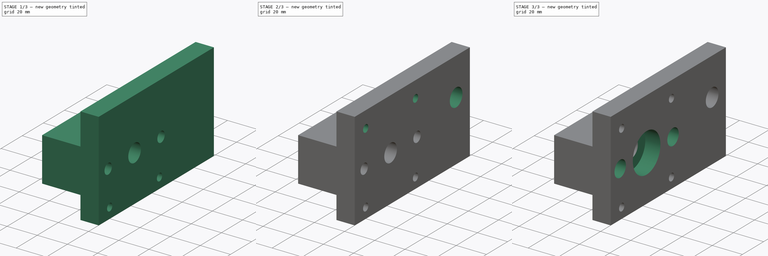
[diagram: build sequence overview — one tinted view per stage of 3, left to right]
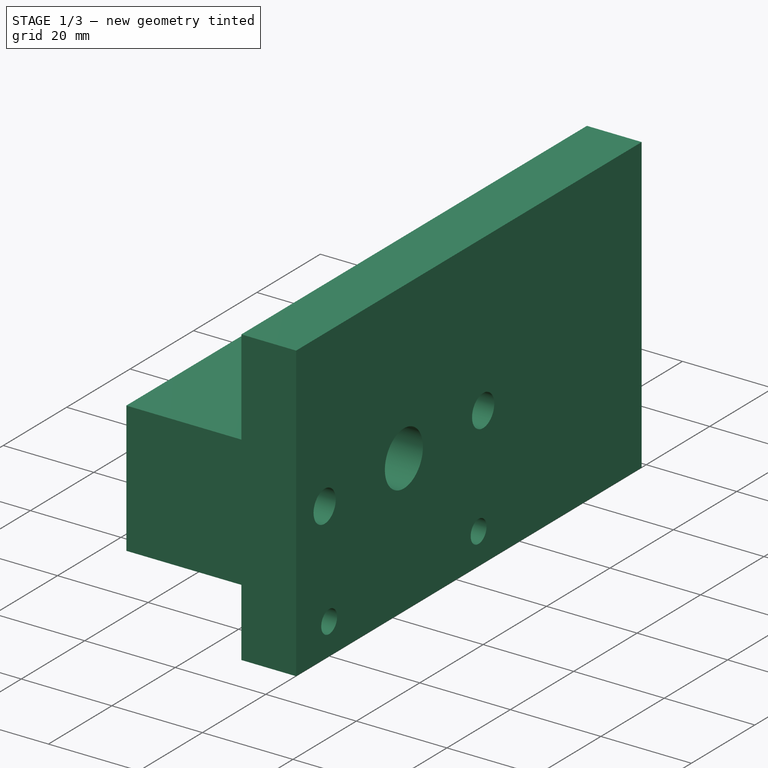
[diagram: stage 1 of 3 — iso view after this stage's code; geometry added in this stage tinted green]
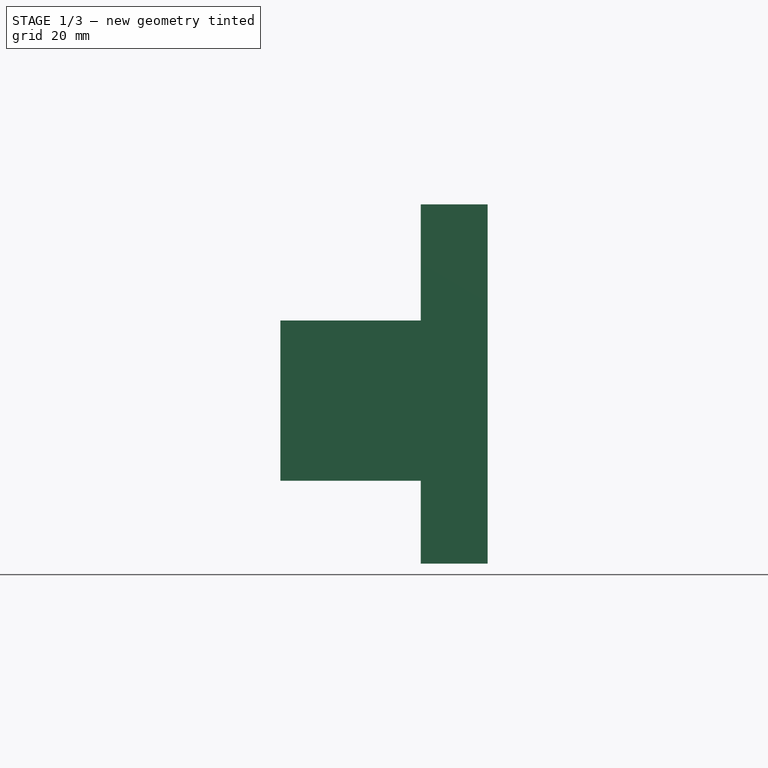
[diagram: stage 1 of 3 — front view after this stage's code; geometry added in this stage tinted green]
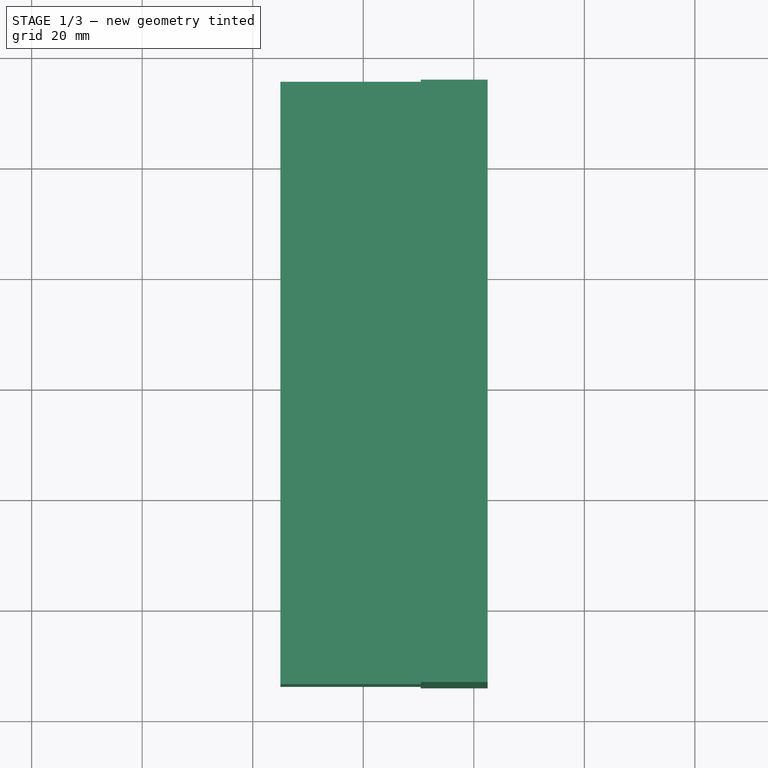
[diagram: stage 1 of 3 — top view after this stage's code; geometry added in this stage tinted green]
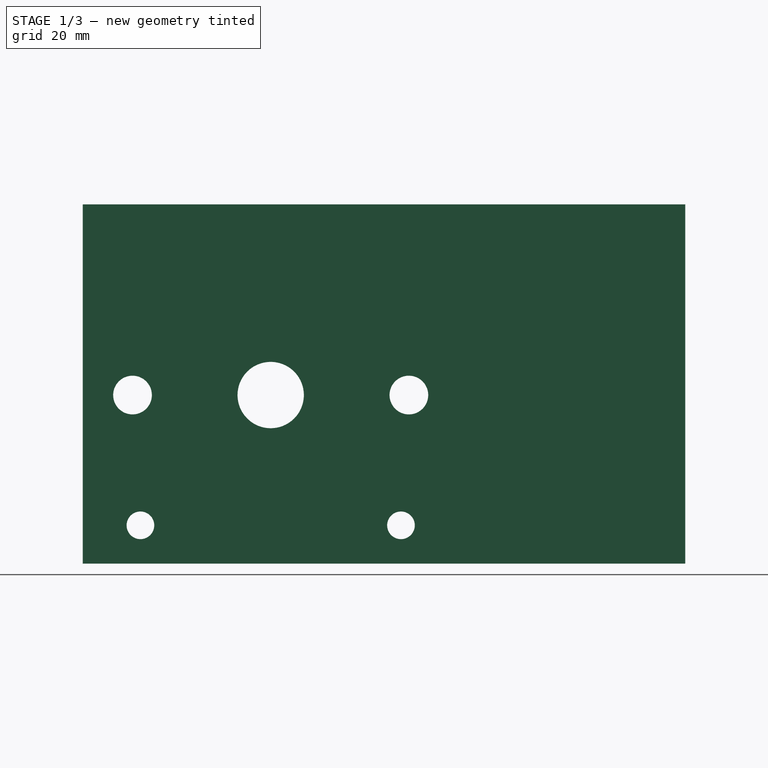
[diagram: stage 1 of 3 — right view after this stage's code; geometry added in this stage tinted green]
FCSTD DOCUMENT  (FreeCAD 0.16R6703 (Git))
Label: Y-Axis-screw-seat-142-new
License: All rights reserved
LicenseURL: http://en.wikipedia.org/wiki/All_rights_reserved
objects: Sketcher::SketchObject×7, PartDesign::Pocket×6, PartDesign::Pad×1
note: 21 computed .brp shape members not serialized (recipe doc carries the construction recipe); baked Part::Feature solids carry a one-line shape summary decoded from their .brp

FEATURE [Sketcher::SketchObject] Sketch006  label="Base"
  Placement = pos=(25,0,0) rot=(0.57735,0.57735,0.57735;2.0944rad)
  sketch-geometry (9):
    g0: Circle CenterX=-23.57 CenterY=-36.07 CenterZ=0 NormalX=0 NormalY=0 NormalZ=1 Radius=2.5
    g1: Circle CenterX=23.57 CenterY=-36.07 CenterZ=0 NormalX=0 NormalY=0 NormalZ=1 Radius=2.5
    g2: LineSegment StartX=-34 StartY=22 StartZ=0 EndX=75 EndY=22 EndZ=0
    g3: LineSegment StartX=75 StartY=22 StartZ=0 EndX=75 EndY=-43 EndZ=0
    g4: LineSegment StartX=75 StartY=-43 StartZ=0 EndX=-34 EndY=-43 EndZ=0
    g5: LineSegment StartX=-34 StartY=-43 StartZ=0 EndX=-34 EndY=22 EndZ=0
    g6: Circle CenterX=0 CenterY=-12.5 CenterZ=0 NormalX=0 NormalY=0 NormalZ=1 Radius=6
    g7: Circle CenterX=25 CenterY=-12.5 CenterZ=0 NormalX=0 NormalY=0 NormalZ=1 Radius=3.5
    g8: Circle CenterX=-25 CenterY=-12.5 CenterZ=0 NormalX=0 NormalY=0 NormalZ=1 Radius=3.5
  constraints (22):
    c: Symmetric(g0,g1,g-2)
    c: DistanceX(g0,g1) = 47.14
    c: Coincident(g2,g3)
    c: Coincident(g3,g4)
    c: Coincident(g4,g5)
    c: Coincident(g5,g2)
    c: Horizontal(g2)
    c: Horizontal(g4)
    c: Vertical(g3)
    c: Vertical(g5)
    c: DistanceX(g-1,g2) = -34
    c: DistanceX(g2,g2) = 109
    c: DistanceY(g-1,g2) = 22
    c: DistanceY(g2,g3) = -65
    c: PointOnObject(g6,g-2)
    c: Symmetric(g7,g8,g-2)
    c: DistanceX(g8,g7) = 50
    c: DistanceY(g-1,g7) = -12.5
    c: Equal(g7,g8)
    c: Radius(g7) = 3.5
    c: DistanceY(g-1,g6) = -12.5
    c: Radius(g6) = 6
FEATURE [PartDesign::Pad] Pad
  Length = 37.5
  Length2 = 100
  Placement = pos=(25,0,0) rot=(0.57735,0.57735,0.57735;2.0944rad)
  Sketch = -> Sketch006
  Type = 0
FEATURE [Sketcher::SketchObject] Sketch010
  Placement = pos=(25,-34,0) rot=(0.57735,0.57735,-0.57735;2.0944rad)
  Support = -> Pad [Face4]
  sketch-geometry (8):
    g0: LineSegment StartX=-22 StartY=25.4 StartZ=0 EndX=-1 EndY=25.4 EndZ=0
    g1: LineSegment StartX=-1 StartY=25.4 StartZ=0 EndX=-1 EndY=0 EndZ=0
    g2: LineSegment StartX=-1 StartY=0 StartZ=0 EndX=-22 EndY=0 EndZ=0
    g3: LineSegment StartX=-22 StartY=0 StartZ=0 EndX=-22 EndY=25.4 EndZ=0
    g4: LineSegment StartX=28 StartY=25.4 StartZ=0 EndX=43 EndY=25.4 EndZ=0
    g5: LineSegment StartX=43 StartY=25.4 StartZ=0 EndX=43 EndY=0 EndZ=0
    g6: LineSegment StartX=43 StartY=0 StartZ=0 EndX=28 EndY=0 EndZ=0
    g7: LineSegment StartX=28 StartY=0 StartZ=0 EndX=28 EndY=25.4 EndZ=0
  constraints (24):
    c: Coincident(g0,g1)
    c: Coincident(g1,g2)
    c: Coincident(g2,g3)
    c: Coincident(g3,g0)
    c: Horizontal(g0)
    c: Horizontal(g2)
    c: Vertical(g1)
    c: Vertical(g3)
    c: PointOnObject(g1,g-1)
    c: DistanceY(g3) = 25.4
    c: DistanceX(g-1,g2) = -22
    c: DistanceX(g-1,g0) = -1
    c: Coincident(g4,g5)
    c: Coincident(g5,g6)
    c: Coincident(g6,g7)
    c: Coincident(g7,g4)
    c: Horizontal(g4)
    c: Horizontal(g6)
    c: Vertical(g5)
    c: Vertical(g7)
    c: PointOnObject(g6,g-1)
    c: Equal(g3,g5)
    c: DistanceX(g-1,g5) = 43
    c: DistanceX(g0,g4) = 29
FEATURE [PartDesign::Pocket] Pocket
  Length = 109
  Placement = pos=(25,0,0) rot=(0.57735,0.57735,0.57735;2.0944rad)
  Sketch = -> Sketch010
  Type = 0
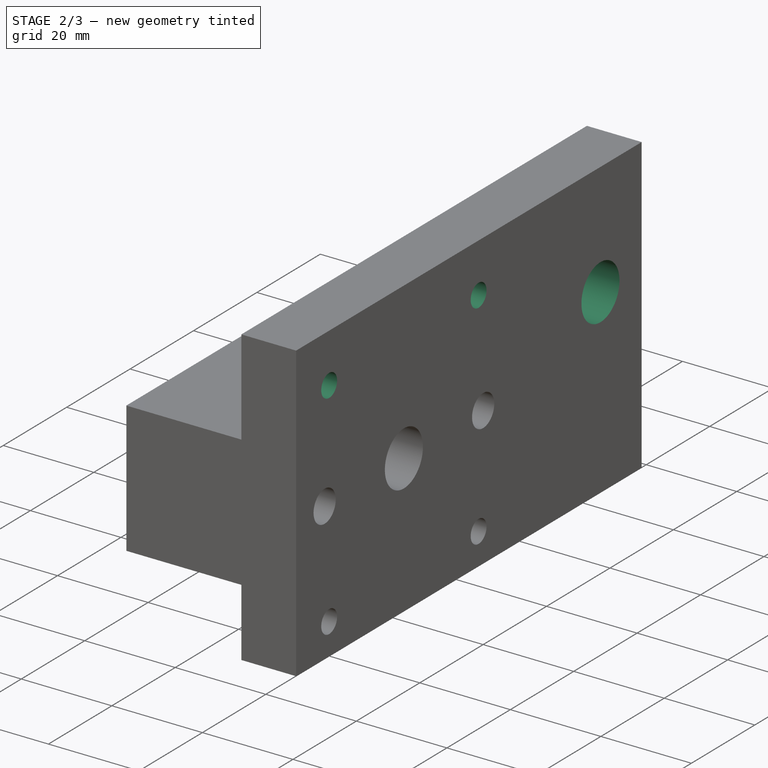
[diagram: stage 2 of 3 — iso view after this stage's code; geometry added in this stage tinted green]
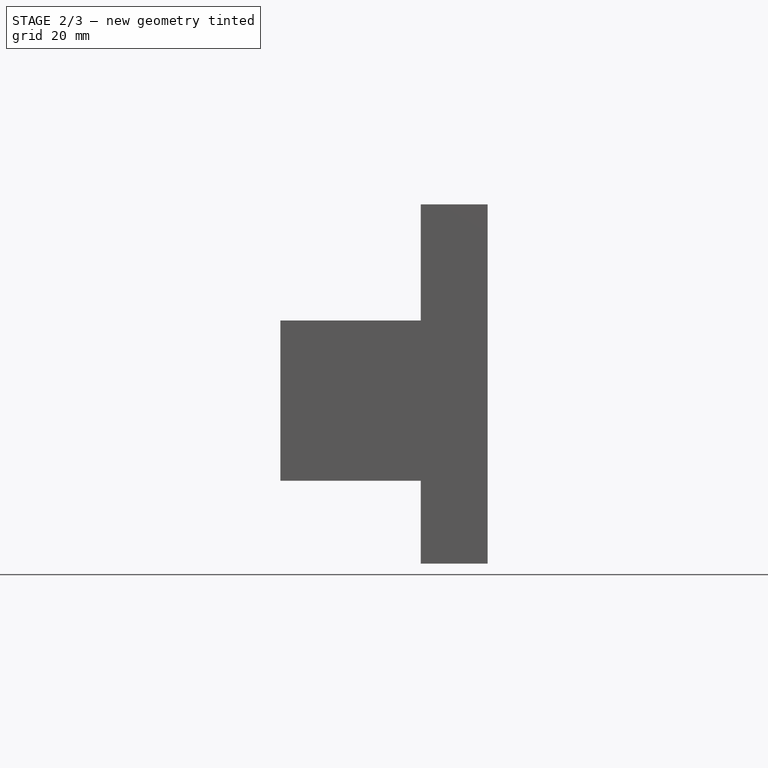
[diagram: stage 2 of 3 — front view after this stage's code; geometry added in this stage tinted green]
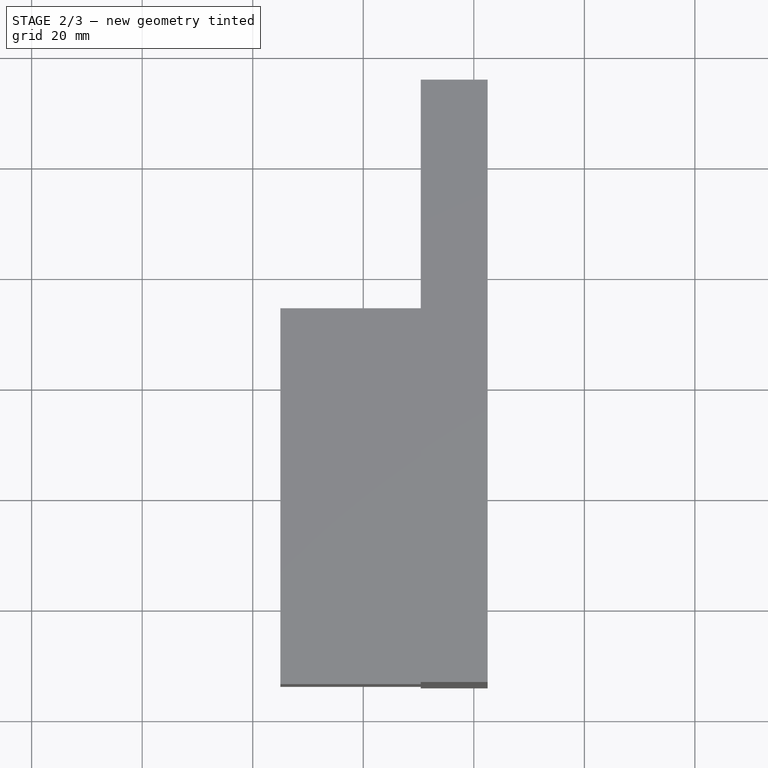
[diagram: stage 2 of 3 — top view after this stage's code; geometry added in this stage tinted green]
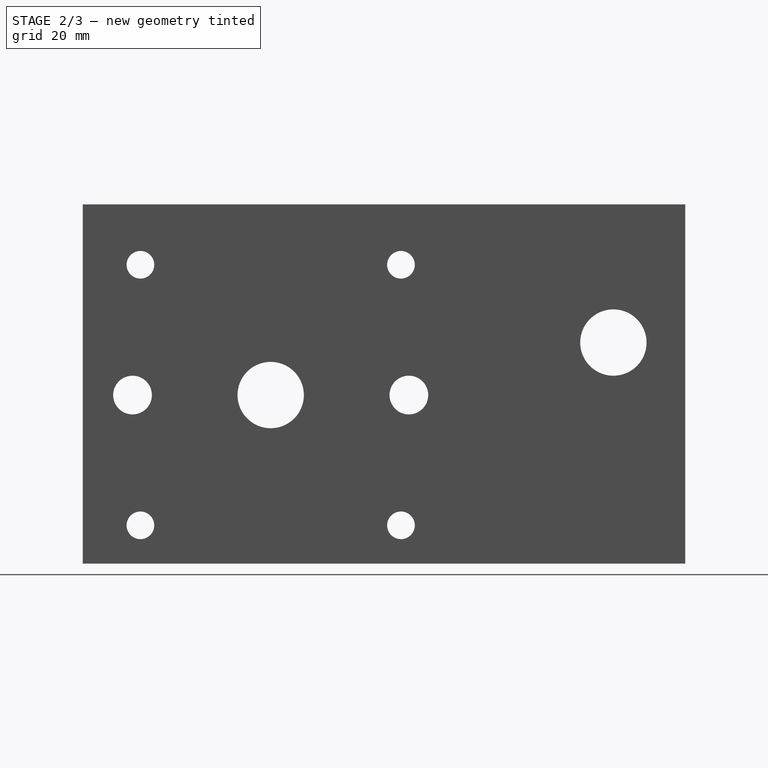
[diagram: stage 2 of 3 — right view after this stage's code; geometry added in this stage tinted green]
FEATURE [Sketcher::SketchObject] Sketch011
  Placement = pos=(25,0,-28) rot=(0.707107,0.707107,0;3.14159rad)
  Support = -> Pocket [Face8]
  sketch-geometry (4):
    g0: LineSegment StartX=34 StartY=25.4 StartZ=0 EndX=75 EndY=25.4 EndZ=0
    g1: LineSegment StartX=75 StartY=25.4 StartZ=0 EndX=75 EndY=0 EndZ=0
    g2: LineSegment StartX=75 StartY=0 StartZ=0 EndX=34 EndY=0 EndZ=0
    g3: LineSegment StartX=34 StartY=0 StartZ=0 EndX=34 EndY=25.4 EndZ=0
  constraints (12):
    c: Coincident(g0,g1)
    c: Coincident(g1,g2)
    c: Coincident(g2,g3)
    c: Coincident(g3,g0)
    c: Horizontal(g0)
    c: Horizontal(g2)
    c: Vertical(g1)
    c: Vertical(g3)
    c: PointOnObject(g2,g-1)
    c: DistanceX(g-1,g1) = 75
    c: DistanceY(g1) = -25.4
    c: DistanceX(g-1,g0) = 34
FEATURE [PartDesign::Pocket] Pocket001
  Length = 29
  Placement = pos=(25,0,0) rot=(0.57735,0.57735,0.57735;2.0944rad)
  Sketch = -> Sketch011
  Type = 0
FEATURE [Sketcher::SketchObject] Sketch009  label="Base001"
  Placement = pos=(62.5,0,0) rot=(0.57735,0.57735,0.57735;2.0944rad)
  Support = -> Pocket001 [Face4]
  sketch-geometry (3):
    g0: Circle CenterX=-23.57 CenterY=11.07 CenterZ=0 NormalX=0 NormalY=0 NormalZ=1 Radius=2.5
    g1: Circle CenterX=23.57 CenterY=11.07 CenterZ=0 NormalX=0 NormalY=0 NormalZ=1 Radius=2.5
    g2: Circle CenterX=62 CenterY=-3 CenterZ=0 NormalX=0 NormalY=0 NormalZ=1 Radius=6
  constraints (8):
    c: Symmetric(g1,g0,g-2)
    c: Equal(g0,g1)
    c: Radius(g0) = 2.5
    c: DistanceX(g0,g1) = 47.14
    c: Radius(g2) = 6
    c: DistanceX(g-1,g2) = 62
    c: DistanceY(g-1,g1) = 11.07
    c: DistanceY(g-1,g2) = -3
FEATURE [PartDesign::Pocket] Pocket002
  Length = 13
  Placement = pos=(25,0,0) rot=(0.57735,0.57735,0.57735;2.0944rad)
  Sketch = -> Sketch009
  Type = 0
FEATURE [Sketcher::SketchObject] Sketch008  label="Sketch003"
  Placement = pos=(50.4,0,0) rot=(0.57735,0.57735,-0.57735;4.18879rad)
  Support = -> Pocket002 [Face2]
  sketch-geometry (4):
    g0: Circle CenterX=-23.57 CenterY=-11.07 CenterZ=0 NormalX=0 NormalY=0 NormalZ=1 Radius=4
    g1: Circle CenterX=23.57 CenterY=-11.07 CenterZ=0 NormalX=0 NormalY=0 NormalZ=1 Radius=4
    g2: Circle CenterX=-23.57 CenterY=36.07 CenterZ=0 NormalX=0 NormalY=0 NormalZ=1 Radius=4
    g3: Circle CenterX=23.57 CenterY=36.07 CenterZ=0 NormalX=0 NormalY=0 NormalZ=1 Radius=4
  constraints (10):
    c: Equal(g1,g0)
    c: Radius(g1) = 4
    c: Symmetric(g0,g1,g-2)
    c: DistanceX(g0,g1) = 47.14
    c: DistanceY(g-1,g0) = -11.07
    c: Equal(g0,g2)
    c: Equal(g2,g3)
    c: Symmetric(g2,g3,g-2)
    c: DistanceY(g2,g0) = -47.14
    c: DistanceX(g2,g3) = 47.14
FEATURE [PartDesign::Pocket] Pocket003
  Length = 5
  Placement = pos=(25,0,0) rot=(0.57735,0.57735,0.57735;2.0944rad)
  Sketch = -> Sketch008
  Type = 0
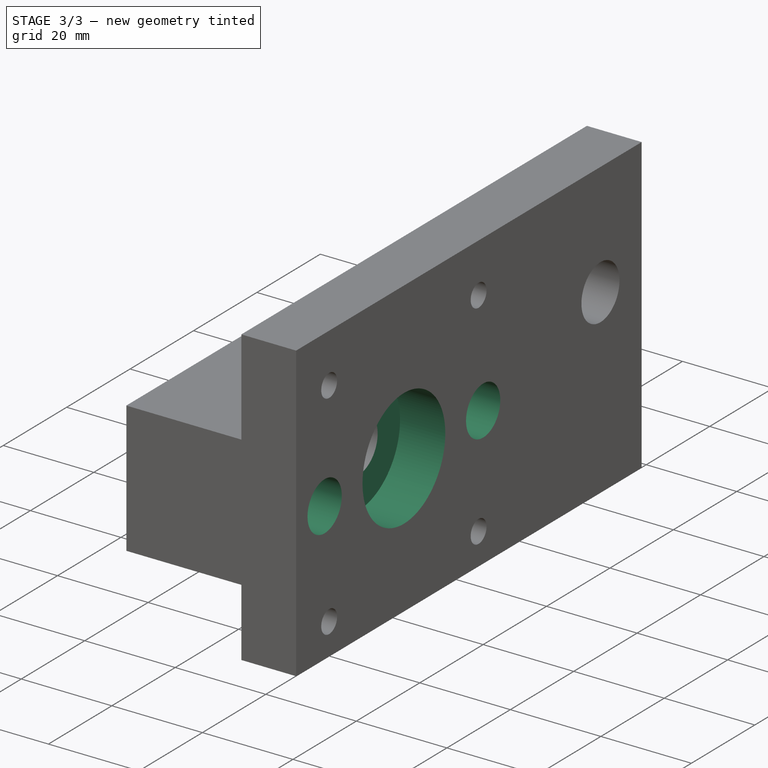
[diagram: stage 3 of 3 — iso view after this stage's code; geometry added in this stage tinted green]
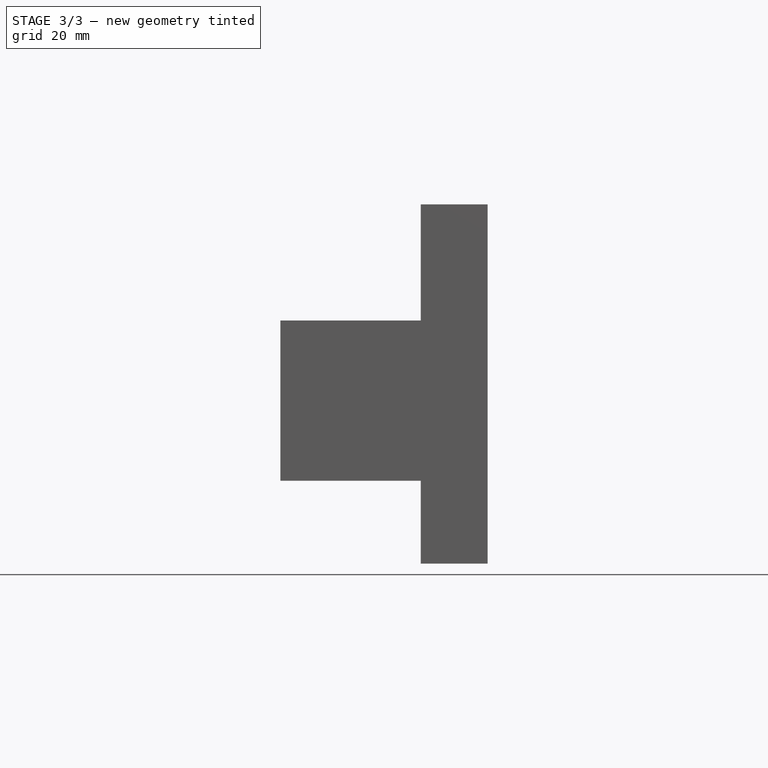
[diagram: stage 3 of 3 — front view after this stage's code; geometry added in this stage tinted green]
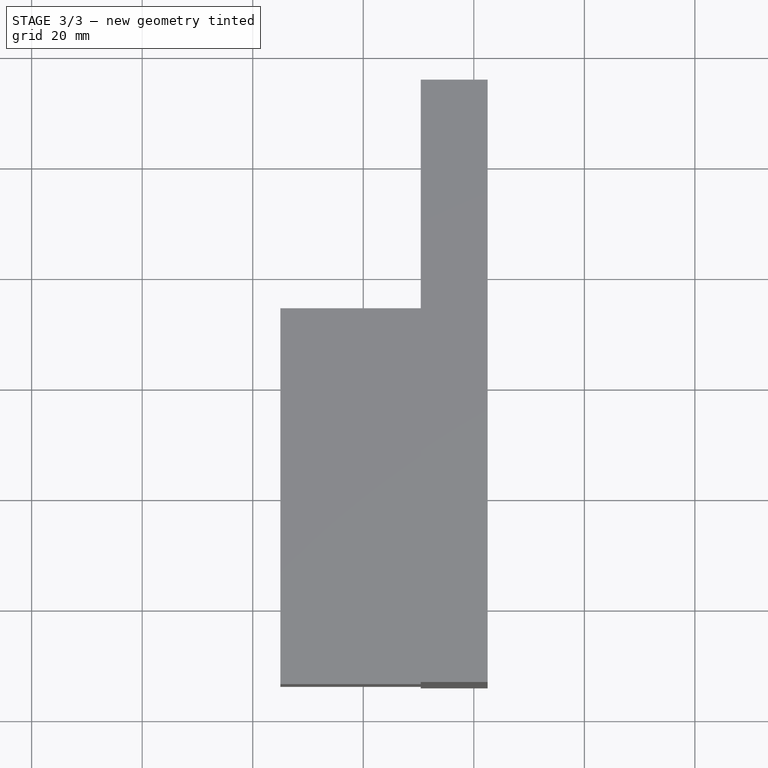
[diagram: stage 3 of 3 — top view after this stage's code; geometry added in this stage tinted green]
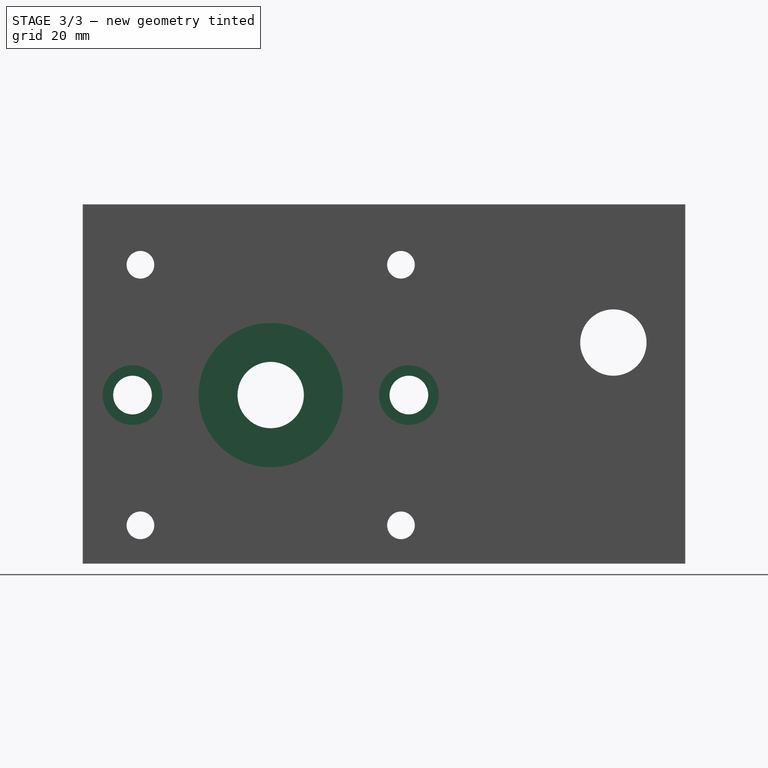
[diagram: stage 3 of 3 — right view after this stage's code; geometry added in this stage tinted green]
FEATURE [Sketcher::SketchObject] Sketch001
  Placement = pos=(62.5,0,0) rot=(0.57735,0.57735,0.57735;2.0944rad)
  Support = -> Pocket003 [Face4]
  sketch-geometry (2):
    g0: Circle CenterX=-25 CenterY=-12.5 CenterZ=0 NormalX=0 NormalY=0 NormalZ=1 Radius=5.4
    g1: Circle CenterX=25 CenterY=-12.5 CenterZ=0 NormalX=0 NormalY=0 NormalZ=1 Radius=5.4
  constraints (5):
    c: Radius(g0) = 5.4
    c: Equal(g0,g1)
    c: Symmetric(g0,g1,g-2)
    c: DistanceX(g0,g1) = 50
    c: DistanceY(g-1,g1) = -12.5
FEATURE [PartDesign::Pocket] Pocket004
  Length = 20
  Placement = pos=(25,0,0) rot=(0.57735,0.57735,0.57735;2.0944rad)
  Sketch = -> Sketch001
  Type = 0
FEATURE [Sketcher::SketchObject] Sketch007  label="Sketch004"
  Placement = pos=(62.5,0,0) rot=(0.57735,0.57735,0.57735;2.0944rad)
  Support = -> Pocket004 [Face4]
  sketch-geometry (1):
    g0: Circle CenterX=0 CenterY=-12.5 CenterZ=0 NormalX=0 NormalY=0 NormalZ=1 Radius=13.05
  constraints (3):
    c: PointOnObject(g0,g-2)
    c: Radius(g0) = 13.05
    c: DistanceY(g-1,g0) = -12.5
FEATURE [PartDesign::Pocket] Pocket005
  Length = 10
  Placement = pos=(25,0,0) rot=(0.57735,0.57735,0.57735;2.0944rad)
  Sketch = -> Sketch007
  Type = 0
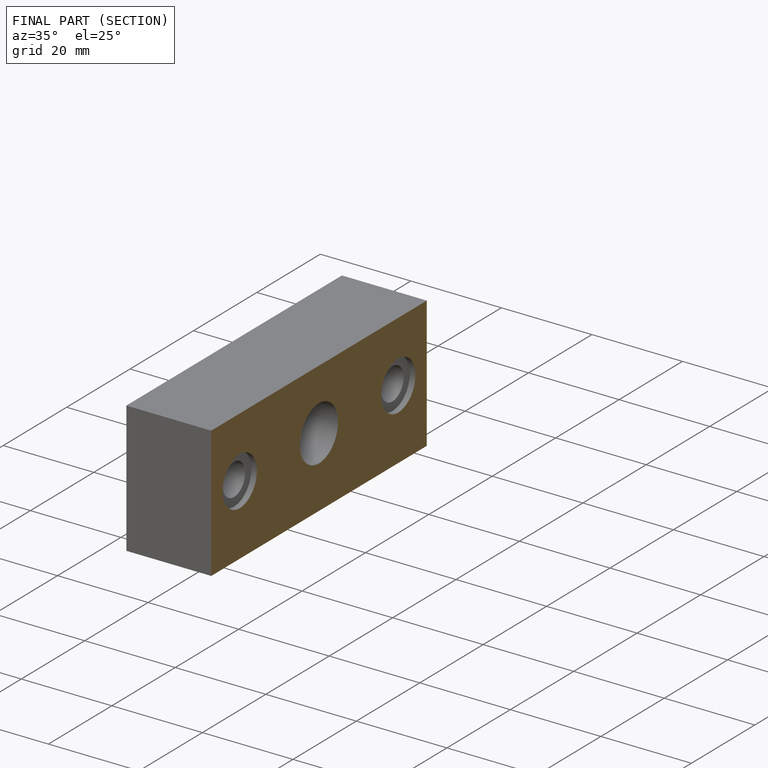
[diagram: finished part — half-section view (interior)]
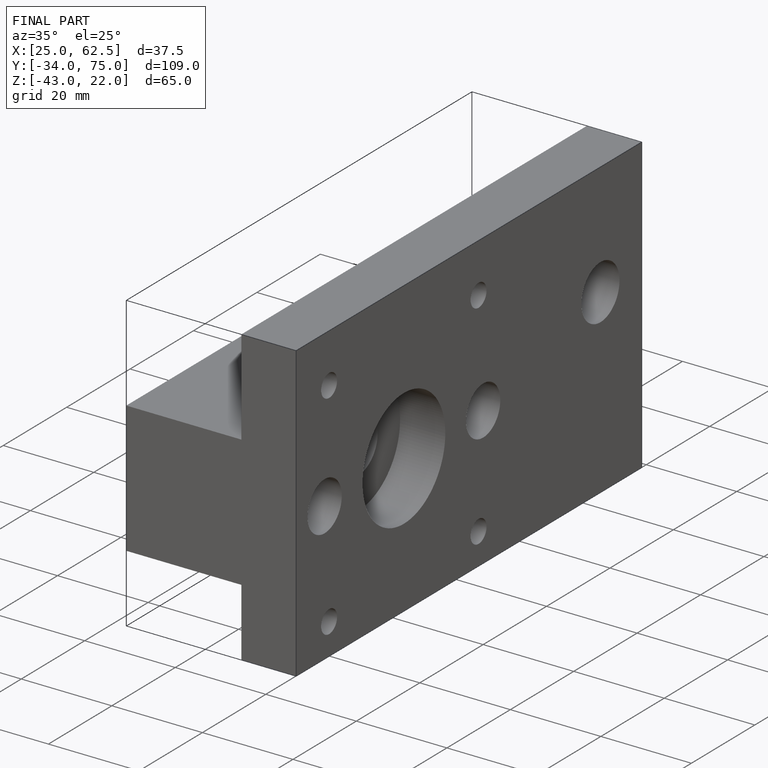
[diagram: finished part — iso view with bounding-box wireframe]
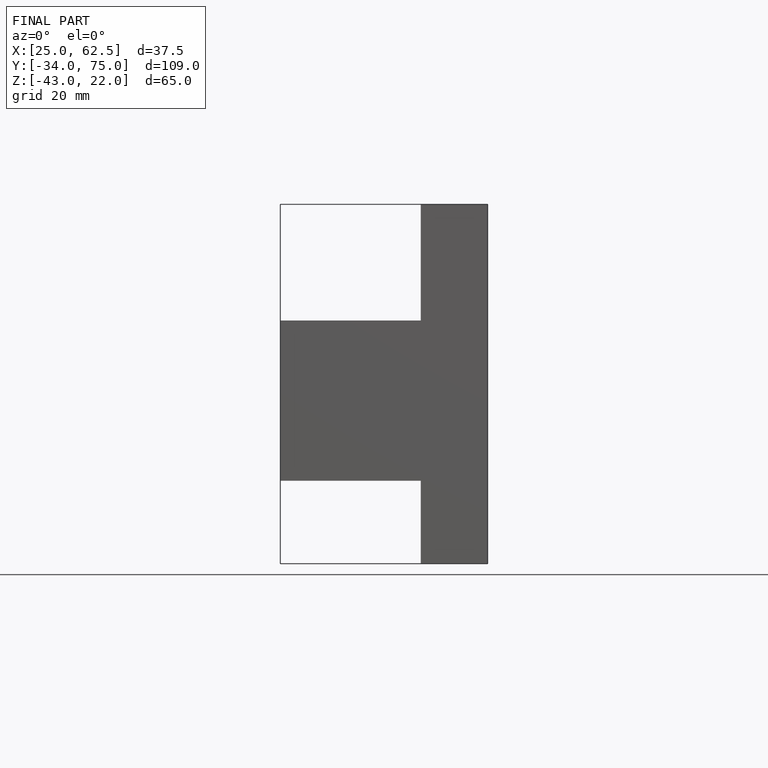
[diagram: finished part — front view with bounding-box wireframe]
